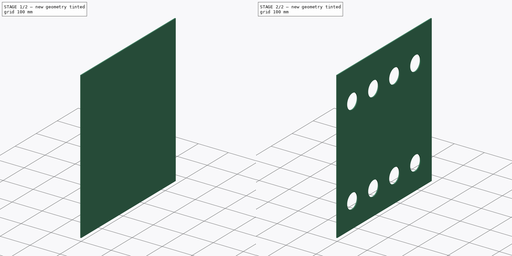
[diagram: build sequence overview — one tinted view per stage of 2, left to right]
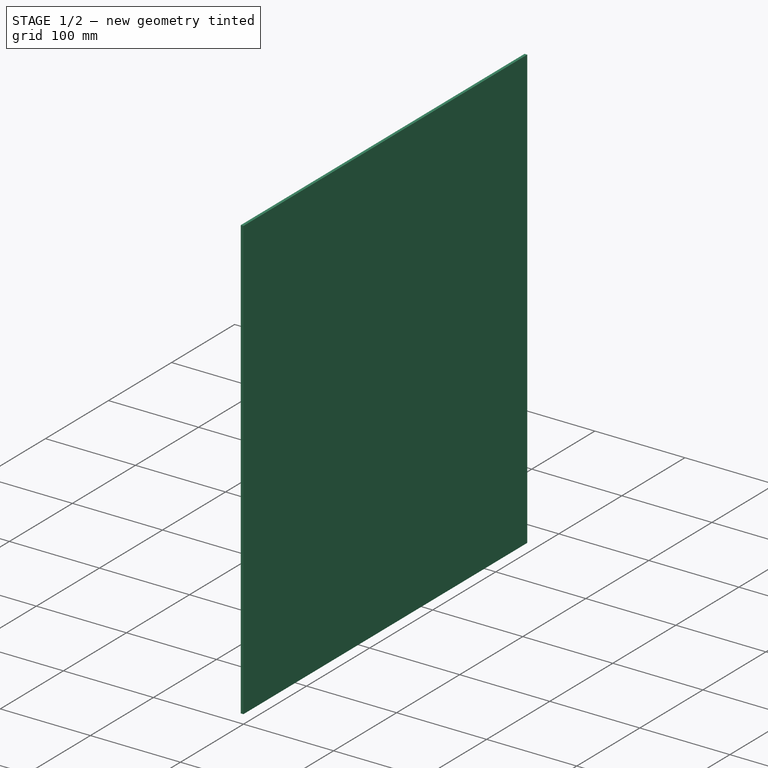
[diagram: stage 1 of 2 — iso view after this stage's code; geometry added in this stage tinted green]
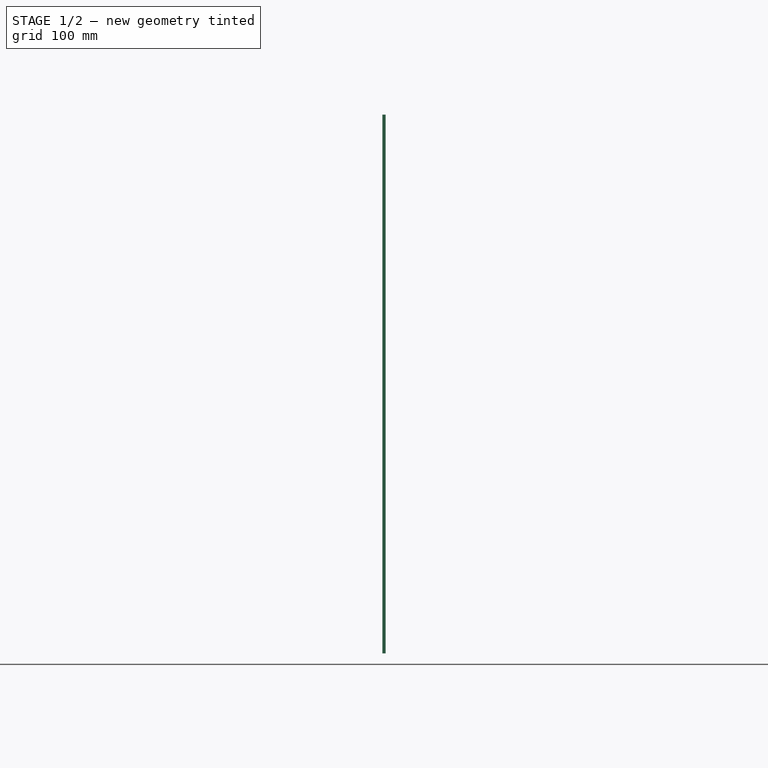
[diagram: stage 1 of 2 — front view after this stage's code; geometry added in this stage tinted green]
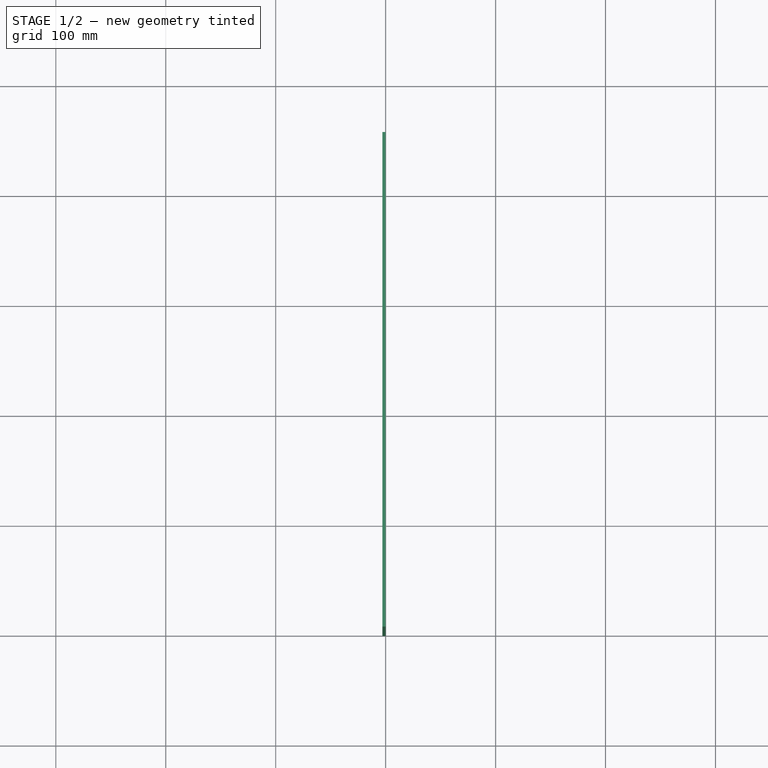
[diagram: stage 1 of 2 — top view after this stage's code; geometry added in this stage tinted green]
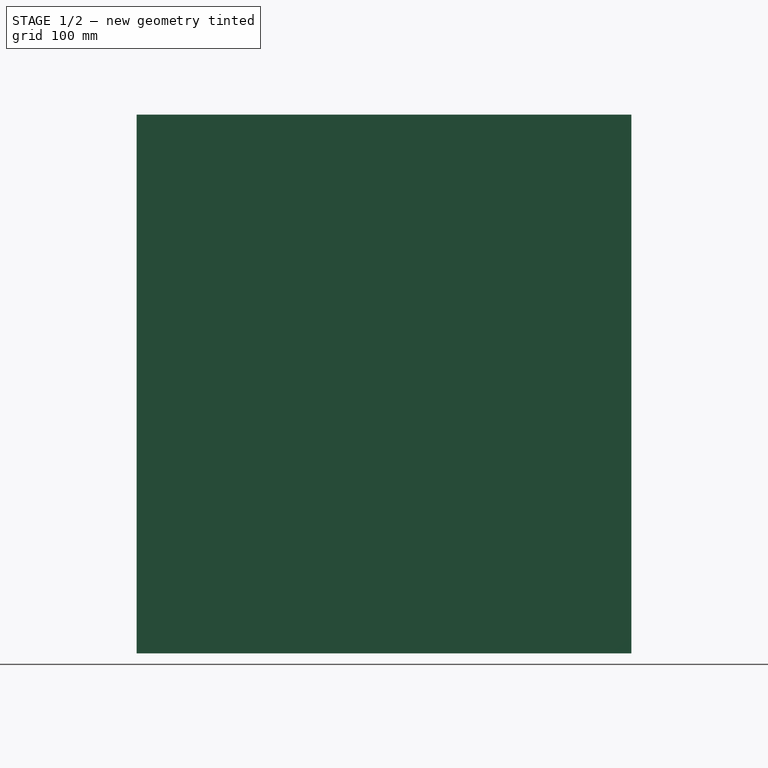
[diagram: stage 1 of 2 — right view after this stage's code; geometry added in this stage tinted green]
FCSTD DOCUMENT  (FreeCAD 0.20R29603 (Git))
Label: 500_Back_Cover
License: All rights reserved
LicenseURL: http://en.wikipedia.org/wiki/All_rights_reserved
objects: Sketcher::SketchObject×2, Spreadsheet::Sheet×1, PartDesign::Pad×1, PartDesign::Pocket×1, PartDesign::Body×1
note: 7 computed .brp shape members not serialized (recipe doc carries the construction recipe); baked Part::Feature solids carry a one-line shape summary decoded from their .brp

FEATURE [Sketcher::SketchObject] Sketch
  FullyConstrained = true
  MapMode = 4
  Placement = pos=(0,0,0) rot=(0.57735,0.57735,0.57735;2.0944rad)
  Support = -> [XY_Plane]
  expr: Constraints[5] = Spreadsheet.nZ
  expr: Constraints[6] = Spreadsheet.nY
  sketch-geometry (5):
    g0: LineSegment StartX=0 StartY=0 StartZ=0 EndX=0 EndY=490 EndZ=0
    g1: LineSegment StartX=450 StartY=0 StartZ=0 EndX=450 EndY=490 EndZ=0
    g2: LineSegment StartX=450 StartY=490 StartZ=0 EndX=0 EndY=490 EndZ=0
    g3: LineSegment StartX=225 StartY=0 StartZ=0 EndX=0 EndY=0 EndZ=0
    g4: LineSegment StartX=450 StartY=0 StartZ=0 EndX=225 EndY=0 EndZ=0
  constraints (14):
    c: Vertical(g0)
    c: Vertical(g1)
    c: Coincident(g2,g1)
    c: Coincident(g2,g0)
    c: Horizontal(g2)
    c: DistanceY(g1,g1) = 490
    c: DistanceX(g2,g2) = 450
    c: Coincident(g3,g0)
    c: Coincident(g4,g1)
    c: Horizontal(g4)
    c: Equal(g3,g4)
    c: Coincident(g4,g3)
    c: Horizontal(g3)
    c: Coincident(g0,g-1)
FEATURE [Spreadsheet::Sheet] Spreadsheet  label="xls"
  cells = B7=KEYBOARD FRONT; B8=Width; C8=nY; D8(nY)=450; B9=Height; C9=nZ; D9(nZ)=490; E9=F(T); B10=Thickness; C10=nT; D10(nT)=3
FEATURE [PartDesign::Pad] Pad
  AllowMultiFace = false
  Direction = (1,0,0)
  Length = 3
  Length2 = 100
  Profile = -> Sketch
  Reversed = true
  Type = 0
  expr: Length = Spreadsheet.nT
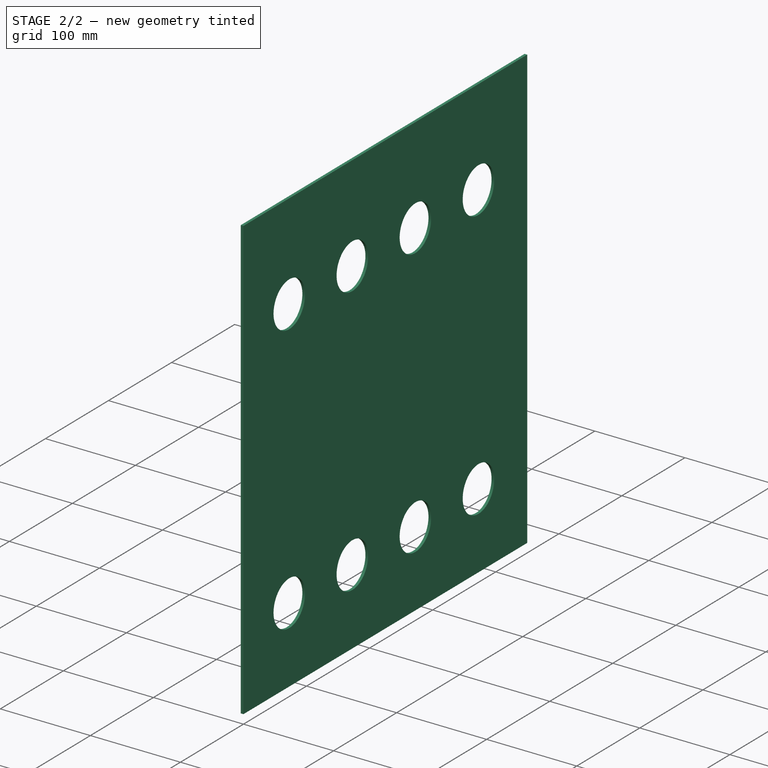
[diagram: stage 2 of 2 — iso view after this stage's code; geometry added in this stage tinted green]
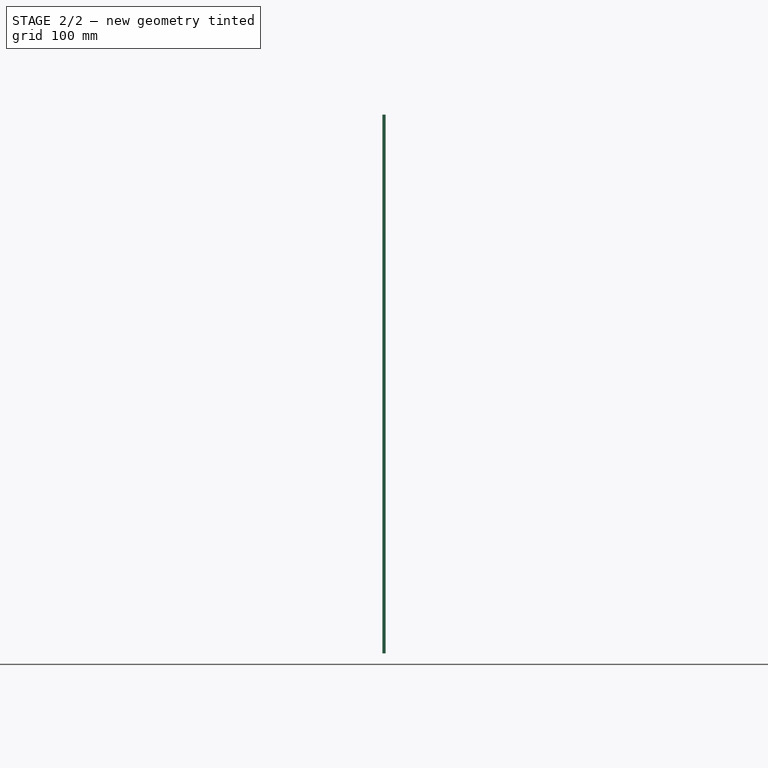
[diagram: stage 2 of 2 — front view after this stage's code; geometry added in this stage tinted green]
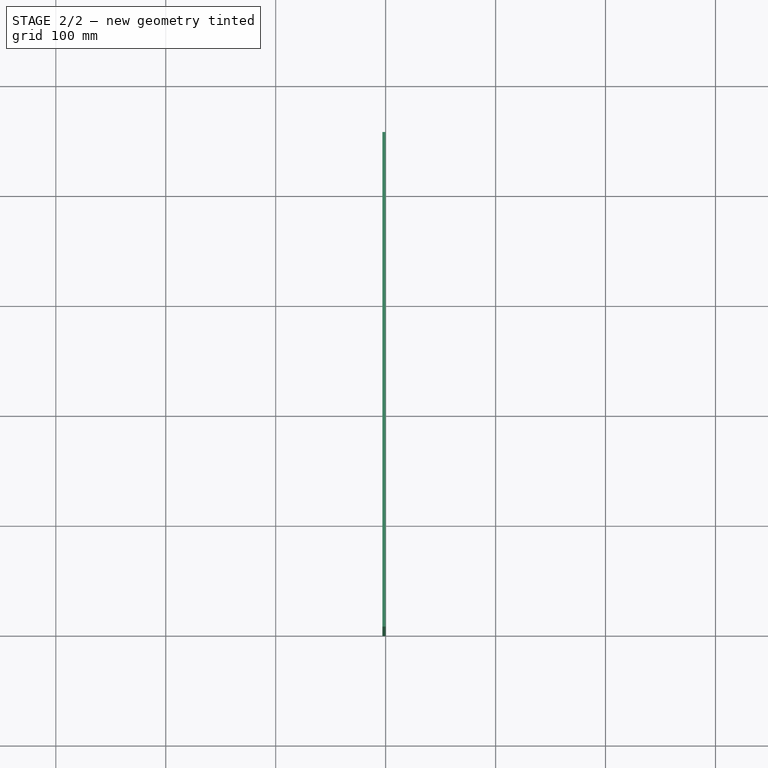
[diagram: stage 2 of 2 — top view after this stage's code; geometry added in this stage tinted green]
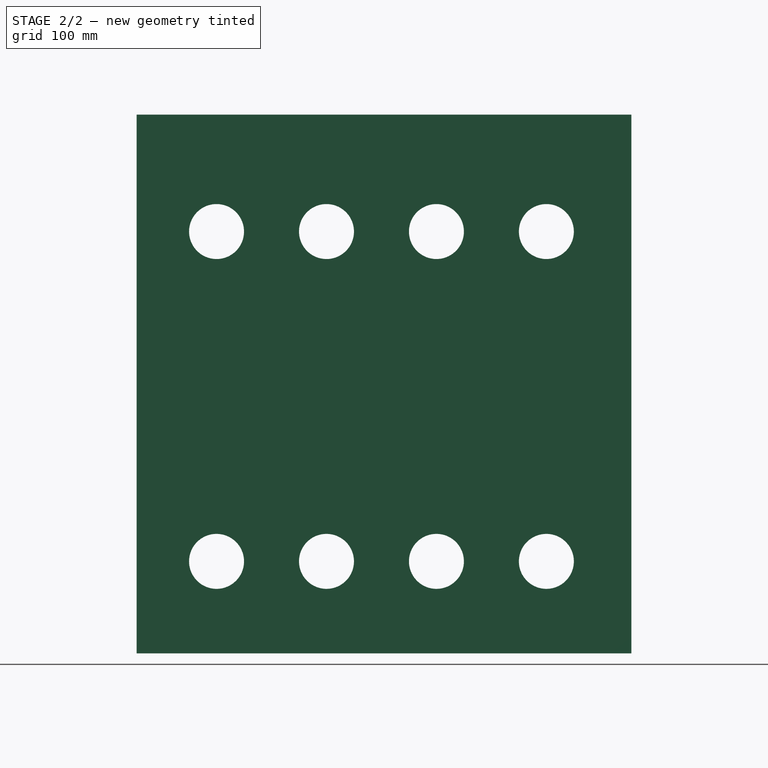
[diagram: stage 2 of 2 — right view after this stage's code; geometry added in this stage tinted green]
FEATURE [Sketcher::SketchObject] Sketch003
  FullyConstrained = false
  MapMode = 5
  Placement = pos=(0,0,0) rot=(0.57735,0.57735,0.57735;2.0944rad)
  Support = -> [YZ_Plane]
  sketch-geometry (11):
    g0: Circle CenterX=372.685 CenterY=383.666 CenterZ=0 NormalX=0 NormalY=0 NormalZ=1 AngleXU=0 Radius=25
    g1: Circle CenterX=272.685 CenterY=383.666 CenterZ=0 NormalX=0 NormalY=0 NormalZ=1 AngleXU=0 Radius=25
    g2: Circle CenterX=72.685 CenterY=383.666 CenterZ=0 NormalX=0 NormalY=0 NormalZ=1 AngleXU=0 Radius=25
    g3: Circle CenterX=72.685 CenterY=83.6656 CenterZ=0 NormalX=0 NormalY=0 NormalZ=1 AngleXU=0 Radius=25
    g4: Circle CenterX=172.685 CenterY=83.6656 CenterZ=0 NormalX=0 NormalY=0 NormalZ=1 AngleXU=0 Radius=25
    g5: Circle CenterX=372.685 CenterY=83.6656 CenterZ=0 NormalX=0 NormalY=0 NormalZ=1 AngleXU=0 Radius=25
    g6: Circle CenterX=272.685 CenterY=83.6656 CenterZ=0 NormalX=0 NormalY=0 NormalZ=1 AngleXU=0 Radius=25
    g7: Circle CenterX=172.685 CenterY=383.666 CenterZ=0 NormalX=0 NormalY=0 NormalZ=1 AngleXU=0 Radius=25
    g8: LineSegment StartX=372.685 StartY=383.666 StartZ=0 EndX=272.685 EndY=383.666 EndZ=0
    g9: LineSegment StartX=272.685 StartY=383.666 StartZ=0 EndX=172.685 EndY=383.666 EndZ=0
    g10: LineSegment StartX=172.685 StartY=383.666 StartZ=0 EndX=72.685 EndY=383.666 EndZ=0
  constraints (28):
    c: Diameter(g0) = 50
    c: Equal(g7,g2)
    c: Equal(g1,g0)
    c: Equal(g5,g6)
    c: Equal(g4,g3)
    c: Horizontal(g0,g1)
    c: Horizontal(g1,g7)
    c: Horizontal(g7,g2)
    c: Horizontal(g5,g6)
    c: Horizontal(g4,g3)
    c: Horizontal(g4,g6)
    c: Equal(g7,g0)
    c: Equal(g2,g3)
    c: Equal(g4,g6)
    c: Vertical(g5,g0)
    c: Vertical(g6,g1)
    c: Vertical(g4,g7)
    c: Vertical(g2,g3)
    c: DistanceY(g5,g0) = 300
    c: Coincident(g8,g0)
    c: Coincident(g8,g1)
    c: Coincident(g9,g1)
    c: Coincident(g9,g7)
    c: Coincident(g10,g7)
    c: Coincident(g10,g2)
    c: Equal(g10,g9)
    c: Equal(g9,g8)
    c: DistanceX(g10,g10) = 100
FEATURE [PartDesign::Pocket] Pocket
  BaseFeature = -> Pad
  Direction = (-1,1.129e-13,-1.129e-13)
  Length = 5
  Length2 = 5
  Profile = -> Sketch003
  ReferenceAxis = -> Sketch003 [N_Axis]
  Type = 1
FEATURE [PartDesign::Body] Body
  Group = -> [Sketch,Pad,Sketch003,Pocket]
  Origin = -> Origin
  Tip = -> Pocket
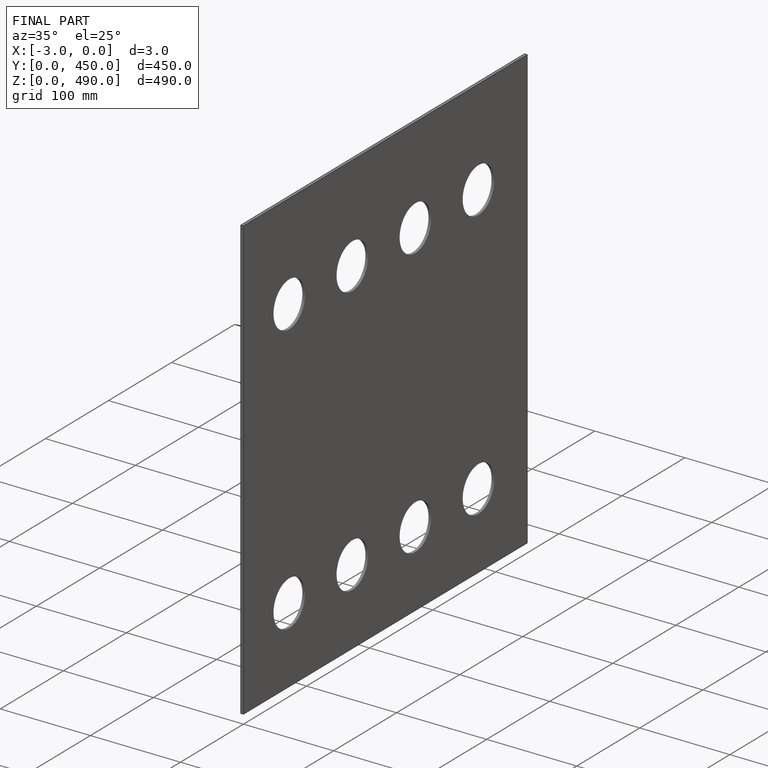
[diagram: finished part — iso view with bounding-box wireframe]
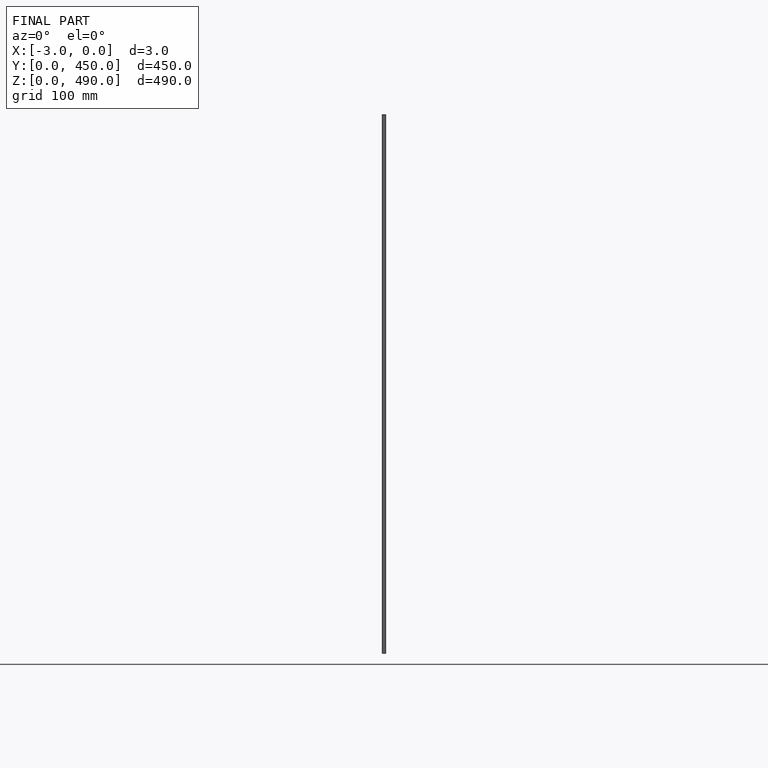
[diagram: finished part — front view with bounding-box wireframe]
